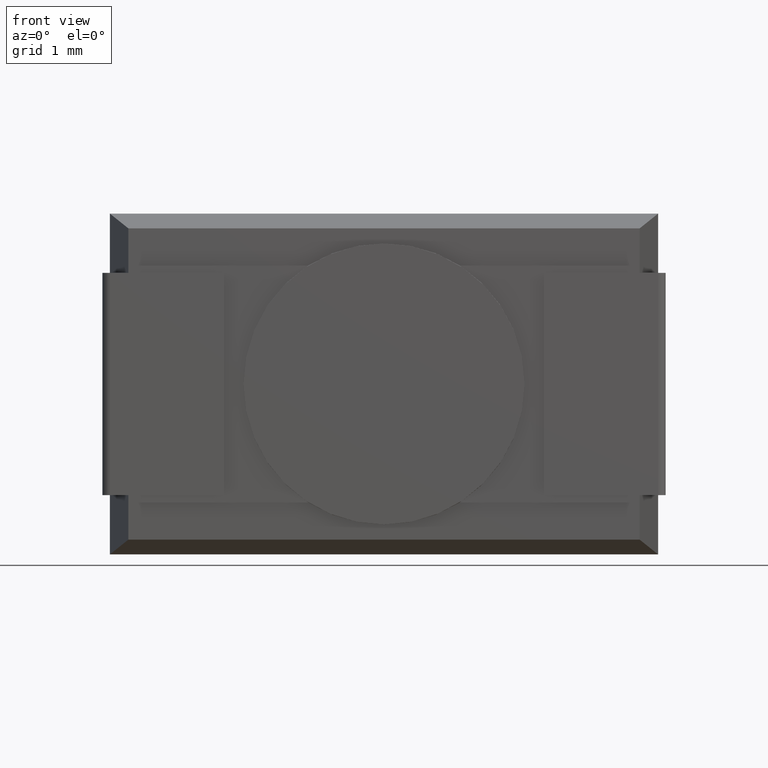
[diagram: clean part render]
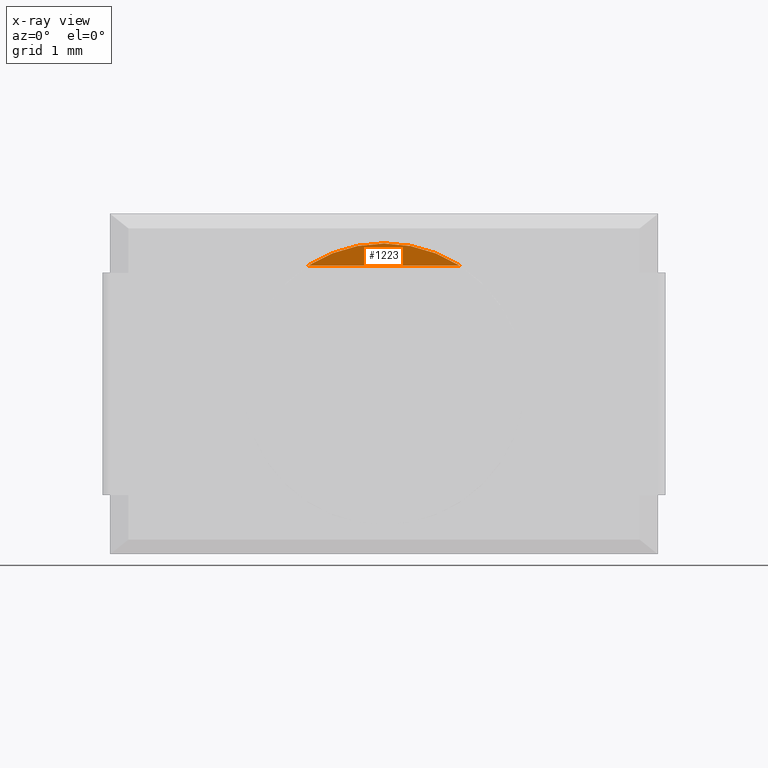
[diagram: x-ray — body ghosted, one internal face saturated and labeled with its STEP entity id]
A machine part, front view, then the same camera in x-ray: the body is ghosted and one INTERNAL B-rep face — a face not visible from any outside direction — is saturated and labeled: STEP entity #1223.
In plain terms, the highlighted planar face has unit normal (0, -1, 0).
Its self-contained STEP definition (entity closure, byte-faithful):
#74 = CARTESIAN_POINT ( 'NONE',  ( 4.718242598993645842, -0.05000000000000000278, -0.7000000000000002887 ) ) ;
#193 = CARTESIAN_POINT ( 'NONE',  ( 2.681757401006354069, -0.05000000000000000278, -0.7000000000000005107 ) ) ;
#402 = VERTEX_POINT ( 'NONE', #2863 ) ;
#512 = ORIENTED_EDGE ( 'NONE', *, *, #640, .F. ) ;
#640 = EDGE_CURVE ( 'NONE', #3739, #402, #3655, .T. ) ;
#1048 = AXIS2_PLACEMENT_3D ( 'NONE', #2326, #2705, #4067 ) ;
#1223 = ADVANCED_FACE ( 'NONE', ( #2650 ), #1722, .F. ) ;
#1336 = DIRECTION ( 'NONE',  ( 0.000000000000000000, 0.000000000000000000, -1.000000000000000000 ) ) ;
#1358 = DIRECTION ( 'NONE',  ( 0.000000000000000000, -1.000000000000000000, 0.000000000000000000 ) ) ;
#1481 = ORIENTED_EDGE ( 'NONE', *, *, #1739, .F. ) ;
#1503 = DIRECTION ( 'NONE',  ( 0.000000000000000000, -1.000000000000000000, 0.000000000000000000 ) ) ;
#1722 = PLANE ( 'NONE',  #1048 ) ;
#1739 = EDGE_CURVE ( 'NONE', #402, #2757, #4362, .T. ) ;
#1839 = ORIENTED_EDGE ( 'NONE', *, *, #3591, .T. ) ;
#1867 = AXIS2_PLACEMENT_3D ( 'NONE', #2718, #1358, #1336 ) ;
#2223 = CARTESIAN_POINT ( 'NONE',  ( 3.699999999999999734, -0.05000000000000000278, -2.299999999999999822 ) ) ;
#2326 = CARTESIAN_POINT ( 'NONE',  ( 3.699999999999999734, -0.05000000000000000278, -2.299999999999999822 ) ) ;
#2579 = AXIS2_PLACEMENT_3D ( 'NONE', #2223, #1503, #4235 ) ;
#2650 = FACE_OUTER_BOUND ( 'NONE', #3193, .T. ) ;
#2705 = DIRECTION ( 'NONE',  ( 0.000000000000000000, -1.000000000000000000, 0.000000000000000000 ) ) ;
#2718 = CARTESIAN_POINT ( 'NONE',  ( 3.699999999999999734, -0.05000000000000000278, -2.299999999999999822 ) ) ;
#2757 = VERTEX_POINT ( 'NONE', #193 ) ;
#2830 = VECTOR ( 'NONE', #3849, 1000.000000000000000 ) ;
#2863 = CARTESIAN_POINT ( 'NONE',  ( 3.699999999999999734, -0.05000000000000000278, -0.4034721224286383912 ) ) ;
#3193 = EDGE_LOOP ( 'NONE', ( #512, #1839, #1481 ) ) ;
#3209 = CARTESIAN_POINT ( 'NONE',  ( 7.149999999999999467, -0.05000000000000000278, -0.7000000000000000666 ) ) ;
#3591 = EDGE_CURVE ( 'NONE', #3739, #2757, #4240, .T. ) ;
#3655 = CIRCLE ( 'NONE', #2579, 1.896527877571361431 ) ;
#3739 = VERTEX_POINT ( 'NONE', #74 ) ;
#3849 = DIRECTION ( 'NONE',  ( -1.000000000000000000, 0.000000000000000000, -9.427844978134822666E-17 ) ) ;
#4067 = DIRECTION ( 'NONE',  ( 0.000000000000000000, -0.000000000000000000, -1.000000000000000000 ) ) ;
#4235 = DIRECTION ( 'NONE',  ( 0.000000000000000000, 0.000000000000000000, -1.000000000000000000 ) ) ;
#4240 = LINE ( 'NONE', #3209, #2830 ) ;
#4362 = CIRCLE ( 'NONE', #1867, 1.896527877571361431 ) ;